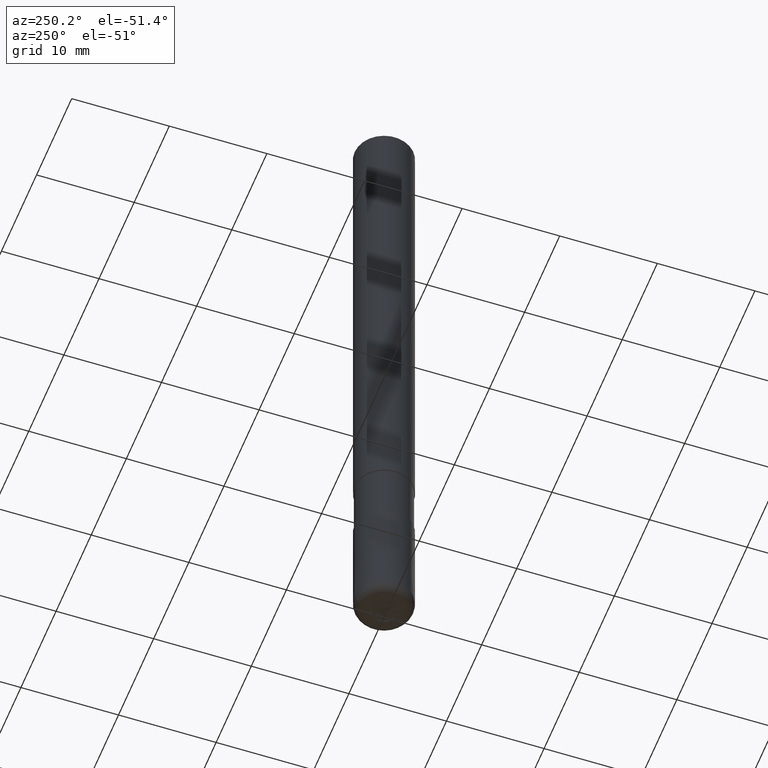
[diagram: clean part render]
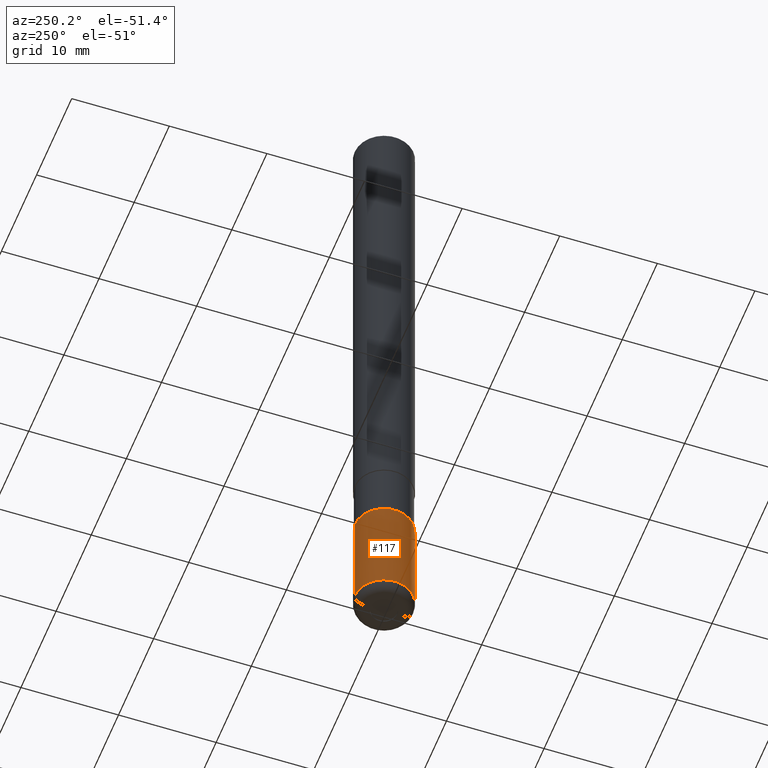
[diagram: same view with one face highlighted and labeled with its STEP entity id]
A machine part, auxiliary view. The second image highlights one B-rep face of the part: STEP entity #117.
In plain terms, the highlighted conical surface has half-angle 0.001 deg.
Its self-contained STEP definition (entity closure, byte-faithful):
#117=ADVANCED_FACE('',(#304),#305,.T.);
#123=VERTEX_POINT('',#312);
#133=EDGE_CURVE('',#123,#225,#324,.T.);
#203=VERTEX_POINT('',#407);
#205=EDGE_CURVE('',#203,#225,#409,.T.);
#207=VERTEX_POINT('',#411);
#209=EDGE_CURVE('',#207,#203,#413,.T.);
#225=VERTEX_POINT('',#430);
#273=EDGE_CURVE('',#123,#207,#483,.T.);
#304=FACE_OUTER_BOUND('',#507,.T.);
#305=CONICAL_SURFACE('',#508,2.99995,9.09090909067784E-006);
#312=CARTESIAN_POINT('',(3.67381906146713E-016,-3.0,-69.0));
#324=CIRCLE('',#531,3.0);
#407=CARTESIAN_POINT('',(0.0,2.9999,-58.0));
#409=LINE('',#639,#640);
#411=CARTESIAN_POINT('',(3.67369660083175E-016,-2.9999,-58.0));
#413=CIRCLE('',#645,2.9999);
#430=CARTESIAN_POINT('',(0.0,3.0,-69.0));
#483=LINE('',#731,#732);
#507=EDGE_LOOP('',(#748,#749,#750,#751));
#508=AXIS2_PLACEMENT_3D('',#752,#753,#754);
#531=AXIS2_PLACEMENT_3D('',#788,#789,#790);
#639=CARTESIAN_POINT('',(-3.67375783114944E-016,2.99995,-63.5));
#640=VECTOR('',#900,1.0);
#645=AXIS2_PLACEMENT_3D('',#901,#902,#903);
#731=CARTESIAN_POINT('',(3.67375783114944E-016,-2.99995,-63.5));
#732=VECTOR('',#982,1.0);
#748=ORIENTED_EDGE('',*,*,#205,.T.);
#749=ORIENTED_EDGE('',*,*,#133,.F.);
#750=ORIENTED_EDGE('',*,*,#273,.T.);
#751=ORIENTED_EDGE('',*,*,#209,.T.);
#752=CARTESIAN_POINT('',(0.0,0.0,-63.5));
#753=DIRECTION('',(0.0,-0.0,-1.0));
#754=DIRECTION('',(0.0,1.0,0.0));
#788=CARTESIAN_POINT('',(0.0,0.0,-69.0));
#789=DIRECTION('',(0.0,0.0,-1.0));
#790=DIRECTION('',(0.0,1.0,0.0));
#900=DIRECTION('',(-1.11327850343123E-021,9.09090909055262E-006,-0.999999999958678));
#901=CARTESIAN_POINT('',(0.0,0.0,-58.0));
#902=DIRECTION('',(0.0,0.0,-1.0));
#903=DIRECTION('',(0.0,1.0,0.0));
#982=DIRECTION('',(-1.11327850343123E-021,9.09090909055262E-006,0.999999999958678));